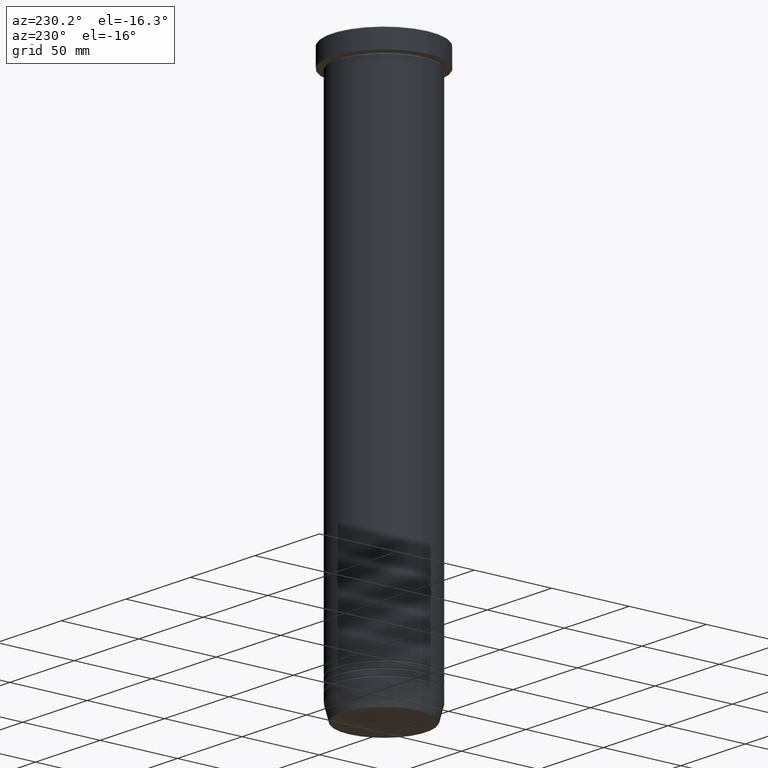
[diagram: clean part render]
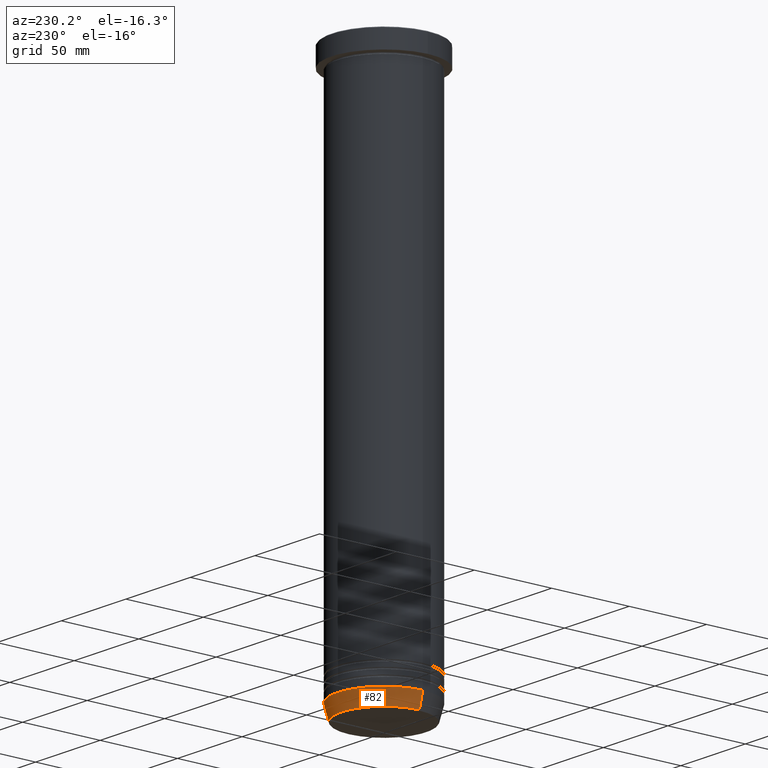
[diagram: same view with one face highlighted and labeled with its STEP entity id]
A machine part, auxiliary view. The second image highlights one B-rep face of the part: STEP entity #82.
In plain terms, the highlighted conical surface has half-angle 15 deg.
Its self-contained STEP definition (entity closure, byte-faithful):
#12 = EDGE_LOOP ( 'NONE', ( #331, #18, #608, #719 ) ) ;
#18 = ORIENTED_EDGE ( 'NONE', *, *, #390, .T. ) ;
#20 = DIRECTION ( 'NONE',  ( -0.000000000000000000, -0.000000000000000000, 1.000000000000000000 ) ) ;
#44 = EDGE_CURVE ( 'NONE', #733, #170, #746, .T. ) ;
#82 = ADVANCED_FACE ( 'NONE', ( #205 ), #189, .T. ) ;
#90 = DIRECTION ( 'NONE',  ( -1.000000000000000000, 0.000000000000000000, 0.000000000000000000 ) ) ;
#143 = VERTEX_POINT ( 'NONE', #542 ) ;
#144 = LINE ( 'NONE', #541, #597 ) ;
#170 = VERTEX_POINT ( 'NONE', #458 ) ;
#189 = CONICAL_SURFACE ( 'NONE', #903, 27.32050807568876039, 0.2617993877991502405 ) ;
#191 = DIRECTION ( 'NONE',  ( 1.000000000000000000, 0.000000000000000000, 0.000000000000000000 ) ) ;
#205 = FACE_OUTER_BOUND ( 'NONE', #12, .T. ) ;
#315 = EDGE_CURVE ( 'NONE', #733, #318, #1009, .T. ) ;
#318 = VERTEX_POINT ( 'NONE', #1015 ) ;
#331 = ORIENTED_EDGE ( 'NONE', *, *, #315, .T. ) ;
#342 = VECTOR ( 'NONE', #595, 1000.000000000000114 ) ;
#390 = EDGE_CURVE ( 'NONE', #318, #143, #144, .T. ) ;
#408 = DIRECTION ( 'NONE',  ( 1.000000000000000000, 0.000000000000000000, 0.000000000000000000 ) ) ;
#433 = AXIS2_PLACEMENT_3D ( 'NONE', #896, #817, #90 ) ;
#458 = CARTESIAN_POINT ( 'NONE',  ( 30.00000000000000000, 0.000000000000000000, -340.0000000000000000 ) ) ;
#515 = CARTESIAN_POINT ( 'NONE',  ( 0.000000000000000000, 0.000000000000000000, -350.0000000000000568 ) ) ;
#536 = DIRECTION ( 'NONE',  ( -0.2588190451025214611, 3.169619151431774186E-17, 0.9659258262890679791 ) ) ;
#541 = CARTESIAN_POINT ( 'NONE',  ( -27.32050807568876039, 3.345797276597165410E-15, -350.0000000000000568 ) ) ;
#542 = CARTESIAN_POINT ( 'NONE',  ( -30.00000000000000000, 3.673940397442059178E-15, -340.0000000000000000 ) ) ;
#553 = DIRECTION ( 'NONE',  ( -0.000000000000000000, -0.000000000000000000, 1.000000000000000000 ) ) ;
#595 = DIRECTION ( 'NONE',  ( 0.2588190451025214611, 0.000000000000000000, 0.9659258262890679791 ) ) ;
#597 = VECTOR ( 'NONE', #536, 1000.000000000000114 ) ;
#608 = ORIENTED_EDGE ( 'NONE', *, *, #1003, .F. ) ;
#671 = CIRCLE ( 'NONE', #724, 30.00000000000000000 ) ;
#719 = ORIENTED_EDGE ( 'NONE', *, *, #44, .F. ) ;
#724 = AXIS2_PLACEMENT_3D ( 'NONE', #883, #553, #408 ) ;
#733 = VERTEX_POINT ( 'NONE', #745 ) ;
#745 = CARTESIAN_POINT ( 'NONE',  ( 27.41980749484381263, 0.000000000000000000, -349.6294095225512706 ) ) ;
#746 = LINE ( 'NONE', #929, #342 ) ;
#817 = DIRECTION ( 'NONE',  ( -0.000000000000000000, -0.000000000000000000, 1.000000000000000000 ) ) ;
#883 = CARTESIAN_POINT ( 'NONE',  ( 0.000000000000000000, 0.000000000000000000, -340.0000000000000000 ) ) ;
#896 = CARTESIAN_POINT ( 'NONE',  ( 0.000000000000000000, 0.000000000000000000, -349.6294095225512706 ) ) ;
#903 = AXIS2_PLACEMENT_3D ( 'NONE', #515, #20, #191 ) ;
#929 = CARTESIAN_POINT ( 'NONE',  ( 27.32050807568876039, 0.000000000000000000, -350.0000000000000568 ) ) ;
#1003 = EDGE_CURVE ( 'NONE', #170, #143, #671, .T. ) ;
#1009 = CIRCLE ( 'NONE', #433, 27.41980749484381263 ) ;
#1015 = CARTESIAN_POINT ( 'NONE',  ( -27.41980749484381263, 3.515949172810883397E-15, -349.6294095225512706 ) ) ;